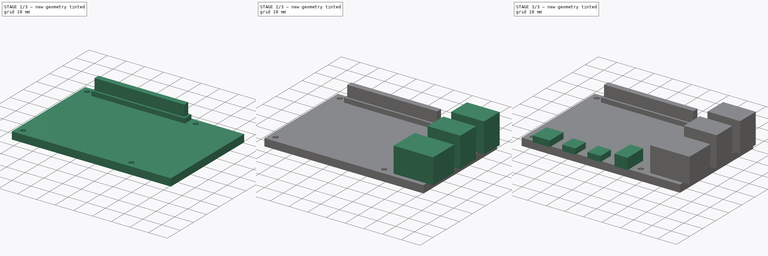
[diagram: build sequence overview — one tinted view per stage of 3, left to right]
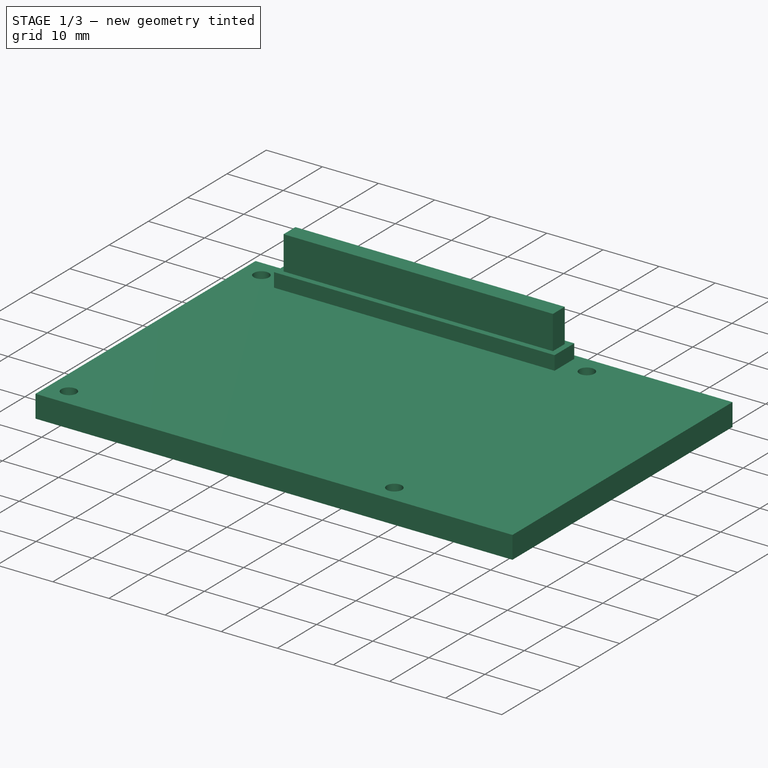
[diagram: stage 1 of 3 — iso view after this stage's code; geometry added in this stage tinted green]
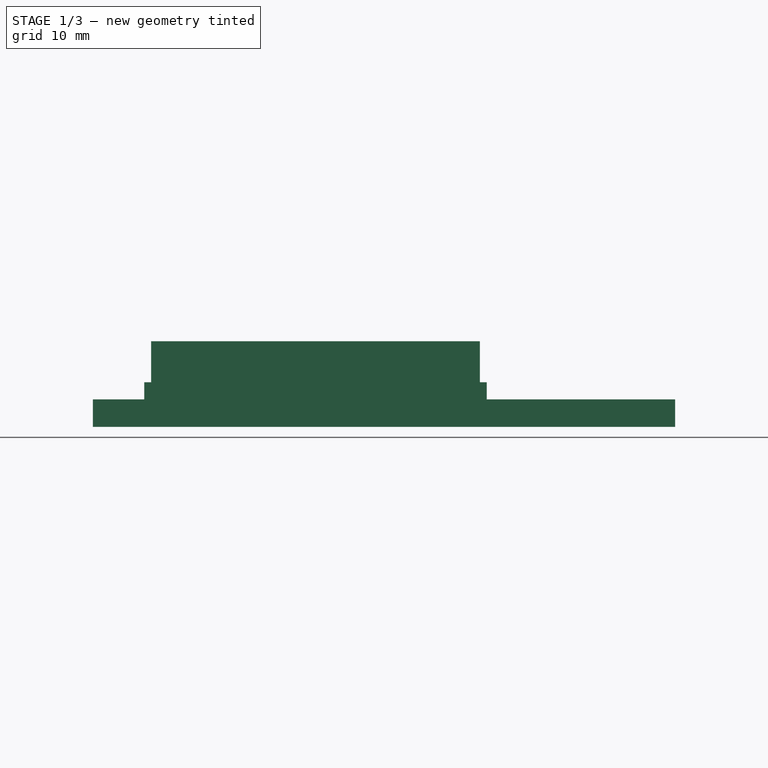
[diagram: stage 1 of 3 — front view after this stage's code; geometry added in this stage tinted green]
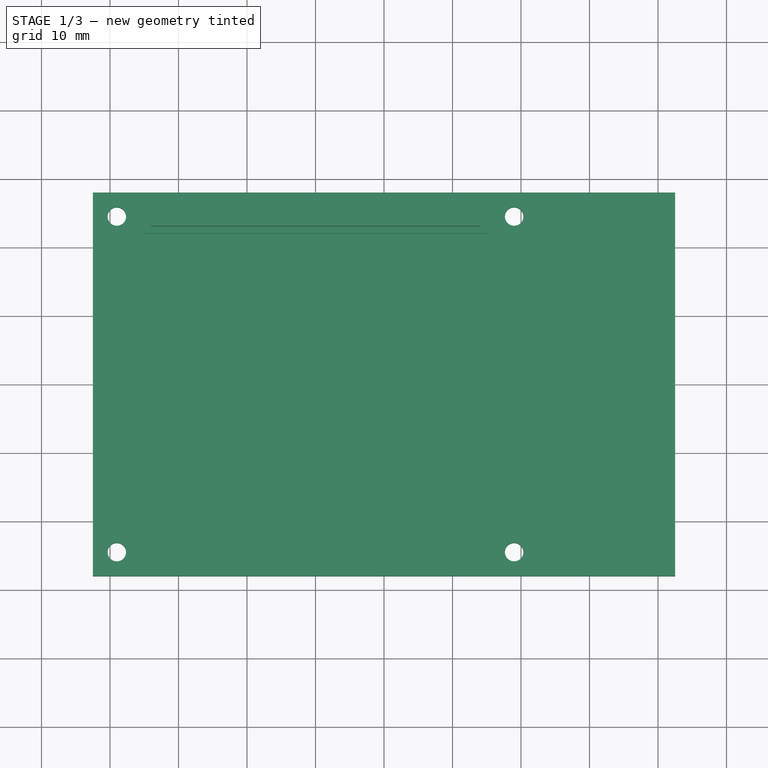
[diagram: stage 1 of 3 — top view after this stage's code; geometry added in this stage tinted green]
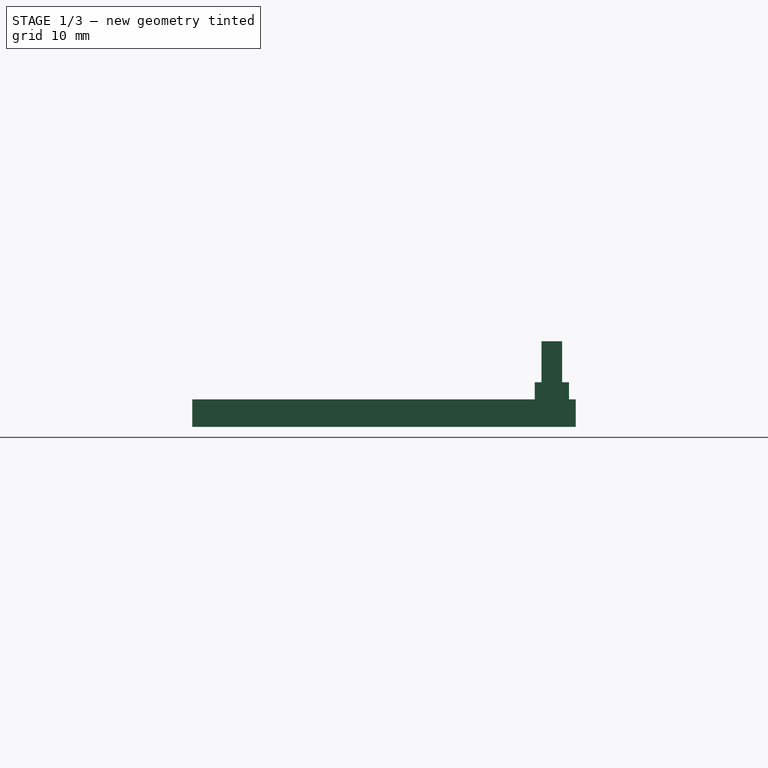
[diagram: stage 1 of 3 — right view after this stage's code; geometry added in this stage tinted green]
FCSTD DOCUMENT  (FreeCAD 0.21R33668 +26 (Git))
Label: Raspberrypi4B
License: All rights reserved
LicenseURL: http://en.wikipedia.org/wiki/All_rights_reserved
objects: Sketcher::SketchObject×8, PartDesign::Pad×7, App::DocumentObjectGroup×3, PartDesign::CoordinateSystem×3, Spreadsheet::Sheet×1, PartDesign::Pocket×1, PartDesign::Body×1, App::FeaturePython×1, App::Part×1
note: 28 computed .brp shape members not serialized (recipe doc carries the construction recipe); baked Part::Feature solids carry a one-line shape summary decoded from their .brp

FEATURE [Sketcher::SketchObject] Sketch
  FullyConstrained = true
  MapMode = 5
  Support = -> [XY_Plane]
  expr: Constraints[12] = <<Spreadsheet>>.holes_distV
  expr: Constraints[13] = <<Spreadsheet>>.holes_distV
  expr: Constraints[14] = <<Spreadsheet>>.holes_offset_x
  expr: Constraints[15] = Spreadsheet.holes_radius
  expr: Constraints[16] = Spreadsheet.holes_radius
  expr: Constraints[17] = Spreadsheet.holes_radius
  expr: Constraints[18] = Spreadsheet.holes_radius
  expr: Constraints[7] = Spreadsheet.width
  expr: Constraints[8] = Spreadsheet.height
  expr: Constraints[9] = <<Spreadsheet>>.holes_distH
  sketch-geometry (8):
    g0: LineSegment StartX=-42.5 StartY=28 StartZ=0 EndX=42.5 EndY=28 EndZ=0
    g1: LineSegment StartX=42.5 StartY=28 StartZ=0 EndX=42.5 EndY=-28 EndZ=0
    g2: LineSegment StartX=42.5 StartY=-28 StartZ=0 EndX=-42.5 EndY=-28 EndZ=0
    g3: LineSegment StartX=-42.5 StartY=-28 StartZ=0 EndX=-42.5 EndY=28 EndZ=0
    g4: Circle CenterX=-39 CenterY=24.5 CenterZ=0 NormalX=0 NormalY=0 NormalZ=1 AngleXU=0 Radius=1.35
    g5: Circle CenterX=19 CenterY=24.5 CenterZ=0 NormalX=0 NormalY=0 NormalZ=1 AngleXU=0 Radius=1.35
    g6: Circle CenterX=-39 CenterY=-24.5 CenterZ=0 NormalX=0 NormalY=0 NormalZ=1 AngleXU=0 Radius=1.35
    g7: Circle CenterX=19 CenterY=-24.5 CenterZ=0 NormalX=0 NormalY=0 NormalZ=1 AngleXU=0 Radius=1.35
  constraints (19):
    c: Coincident(g0,g1)
    c: Coincident(g1,g2)
    c: Coincident(g2,g3)
    c: Coincident(g3,g0)
    c: Symmetric(g0,g0,g-2)
    c: Symmetric(g2,g0,g-1)
    c: Symmetric(g0,g1,g-1)
    c: DistanceX(g0,g0) = 85
    c: DistanceY(g1,g1) = 56
    c: DistanceX(g4,g5) = 58
    c: Symmetric(g4,g6,g-1)
    c: Symmetric(g5,g7,g-1)
    c: DistanceY(g6,g4) = 49
    c: DistanceY(g7,g5) = 49
    c: DistanceX(g0,g4) = 3.5
    c: Radius(g4) = 1.35
    c: Radius(g5) = 1.35
    c: Radius(g7) = 1.35
    c: Radius(g6) = 1.35
FEATURE [PartDesign::Pad] Pad
  Direction = (0,0,1)
  Length = 4
  Length2 = 10
  Profile = -> Sketch
  ReferenceAxis = -> Sketch [N_Axis]
  Reversed = true
  Type = 0
  expr: Length = Spreadsheet.thickness
FEATURE [Spreadsheet::Sheet] Spreadsheet
  cells = B2='width; C2(width)==85 mm; E2='holes_radius; F2(holes_radius)==1.35 mm; H2='usb_lower_offset; I2(usb_lower_offset)==47 mm; B3='height; C3(height)==56 mm; E3='holes_distH; F3(holes_distH)==58 mm; H3='usb_middle_offset; I3(usb_middle_offset)==29 mm; B4='thickness; C4(thickness)==4 mm; E4='holes_distV; F4(holes_distV)==49 mm; H4='ethernet_offset; I4(ethernet_offset)==10.25 mm; E5='holes_offset_x; F5(holes_offset_x)==3.5 mm; H5='usbc_offset; I5(usbc_offset)==7.7 mm + 3.5 mm; B6='connector_width; C6(connector_width)==50 mm; H6='hdmi_left_offset; I6(hdmi_left_offset)==14.8 mm; B7='connector_height; C7(connector_height)==5 mm; H7='hdmi_right_offset; I7(hdmi_right_offset)=13.5; B8='connector_depth; C8(connector_depth)==8.5 mm; H8='round_power_offset; I8(round_power_offset)==14.5 mm; B9='connector_base_depth; C9(connector_base_depth)==2.5 mm; E11='usb_width; F11(usb_width)==12 mm; H11='ethernet_width; I11(ethernet_width)==16 mm; E12='usb_depth; F12(usb_depth)==17.5 mm; H12='ethernet_depth; I12(ethernet_depth)==21.1 mm; E13='usb_height; F13(usb_height)==16 mm; H13='ethernet_height; I13(ethernet_height)==13.5 mm; E15='usbc_width; F15(usbc_width)==9.2 mm; H15='hdmi_width; I15(hdmi_width)==7 mm; E16='usbc_depth; F16(usbc_depth)==10.5 mm; H16='hdmi_depth; I16(hdmi_depth)==8 mm; E17='usbc_height; F17(usbc_height)==3.2 mm; H17='hdmi_height; I17(hdmi_height)==3 mm; E19='rpower_width; F19(rpower_width)==7 mm; H19='right_protrude; I19(right_protrude)==3.5 mm; E20='rpower_depth; F20(rpower_depth)==12 mm; H20='lower_protrude; I20(lower_protrude)==1 mm; E21='rpower_height; F21(rpower_height)==6 mm
FEATURE [Sketcher::SketchObject] Sketch001
  ExternalGeometry = -> [Pad]
  FullyConstrained = true
  MapMode = 5
  Support = -> [Pad]
  expr: Constraints[10] = <<Spreadsheet>>.connector_height
  expr: Constraints[9] = <<Spreadsheet>>.connector_width
  sketch-geometry (5):
    g0: LineSegment StartX=-35 StartY=27 StartZ=0 EndX=15 EndY=27 EndZ=0
    g1: LineSegment StartX=15 StartY=27 StartZ=0 EndX=15 EndY=22 EndZ=0
    g2: LineSegment StartX=15 StartY=22 StartZ=0 EndX=-35 EndY=22 EndZ=0
    g3: LineSegment StartX=-35 StartY=22 StartZ=0 EndX=-35 EndY=27 EndZ=0
    g4: GeomPoint X=-10 Y=24.5 Z=0
  constraints (11):
    c: Coincident(g0,g1)
    c: Coincident(g1,g2)
    c: Coincident(g2,g3)
    c: Coincident(g3,g0)
    c: Horizontal(g0)
    c: Vertical(g1)
    c: Symmetric(g-7,g-8,g4)
    c: Symmetric(g0,g1,g4)
    c: Symmetric(g2,g0,g4)
    c: DistanceX(g0,g0) = 50
    c: DistanceY(g3,g3) = 5
FEATURE [PartDesign::Pad] Pad001
  BaseFeature = -> Pad
  Direction = (0,0,1)
  Length = 8.5
  Length2 = 10
  Profile = -> Sketch001
  ReferenceAxis = -> Sketch001 [N_Axis]
  Type = 0
  expr: Length = <<Spreadsheet>>.connector_depth
FEATURE [Sketcher::SketchObject] Sketch002
  ExternalGeometry = -> [Pad001]
  FullyConstrained = true
  MapMode = 5
  Placement = pos=(0,0,8.5) rot=(0,0,1;0rad)
  Support = -> [Pad001]
  sketch-geometry (8):
    g0: LineSegment StartX=-35 StartY=27 StartZ=0 EndX=15 EndY=27 EndZ=0
    g1: LineSegment StartX=15 StartY=27 StartZ=0 EndX=15 EndY=22 EndZ=0
    g2: LineSegment StartX=15 StartY=22 StartZ=0 EndX=-35 EndY=22 EndZ=0
    g3: LineSegment StartX=-35 StartY=22 StartZ=0 EndX=-35 EndY=27 EndZ=0
    g4: LineSegment StartX=-34 StartY=26 StartZ=0 EndX=14 EndY=26 EndZ=0
    g5: LineSegment StartX=14 StartY=26 StartZ=0 EndX=14 EndY=23 EndZ=0
    g6: LineSegment StartX=14 StartY=23 StartZ=0 EndX=-34 EndY=23 EndZ=0
    g7: LineSegment StartX=-34 StartY=23 StartZ=0 EndX=-34 EndY=26 EndZ=0
  constraints (22):
    c: Coincident(g0,g1)
    c: Coincident(g1,g2)
    c: Coincident(g2,g3)
    c: Coincident(g3,g0)
    c: Horizontal(g0)
    c: Horizontal(g2)
    c: Vertical(g1)
    c: Vertical(g3)
    c: Coincident(g0,g-4)
    c: Coincident(g1,g-6)
    c: Coincident(g4,g5)
    c: Coincident(g5,g6)
    c: Coincident(g6,g7)
    c: Coincident(g7,g4)
    c: Horizontal(g4)
    c: Horizontal(g6)
    c: Vertical(g5)
    c: Vertical(g7)
    c: DistanceX(g0,g4) = 1
    c: DistanceY(g4,g0) = 1
    c: DistanceY(g2,g6) = 1
    c: DistanceX(g4,g0) = 1
FEATURE [PartDesign::Pocket] Pocket  label="Connector"
  BaseFeature = -> Pad001
  Direction = (0,0,-1)
  Length = 6
  Length2 = 5
  Profile = -> Sketch002
  ReferenceAxis = -> Sketch002 [N_Axis]
  Type = 0
  expr: Length = <<Spreadsheet>>.connector_depth - <<Spreadsheet>>.connector_base_depth
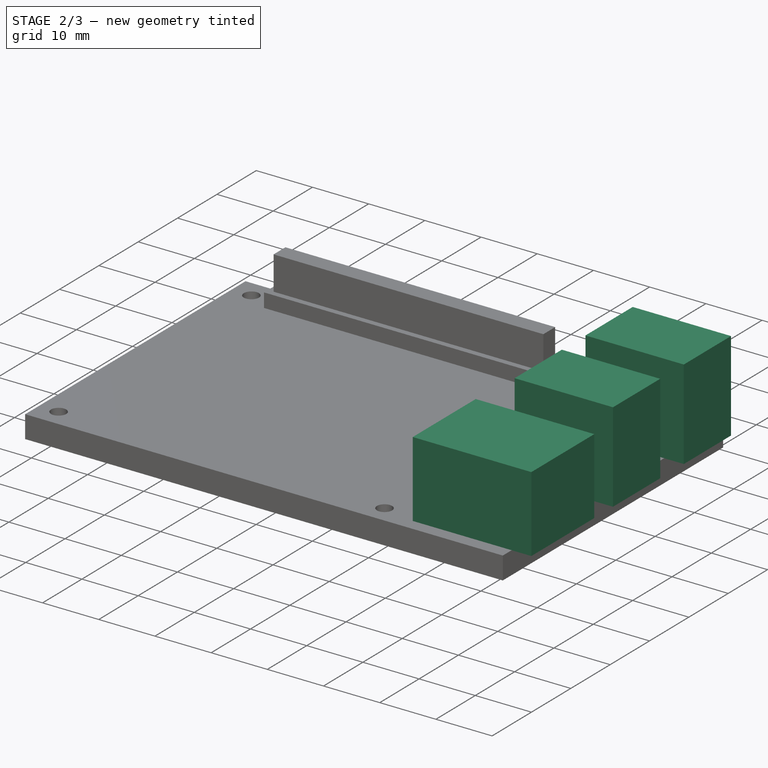
[diagram: stage 2 of 3 — iso view after this stage's code; geometry added in this stage tinted green]
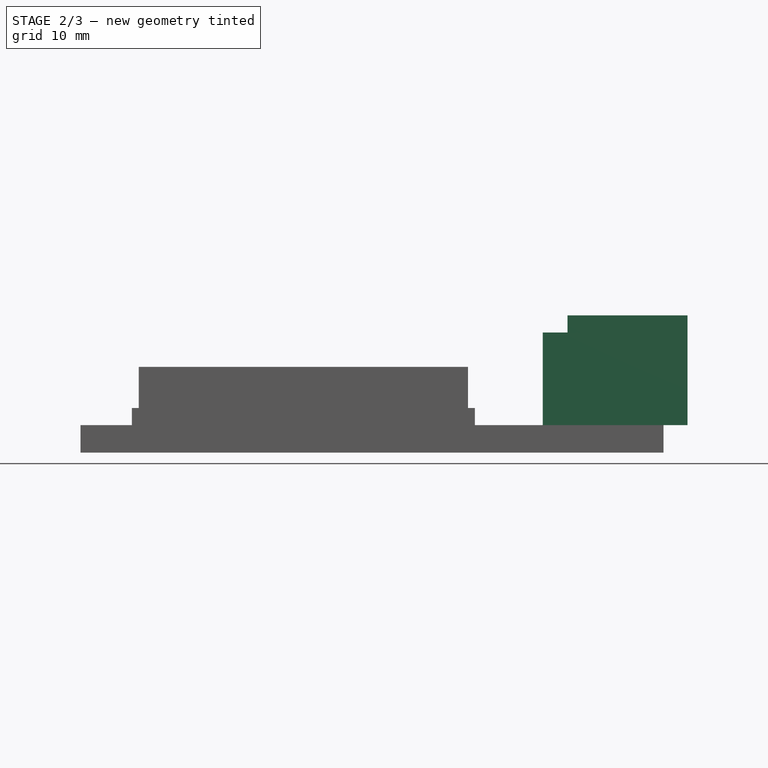
[diagram: stage 2 of 3 — front view after this stage's code; geometry added in this stage tinted green]
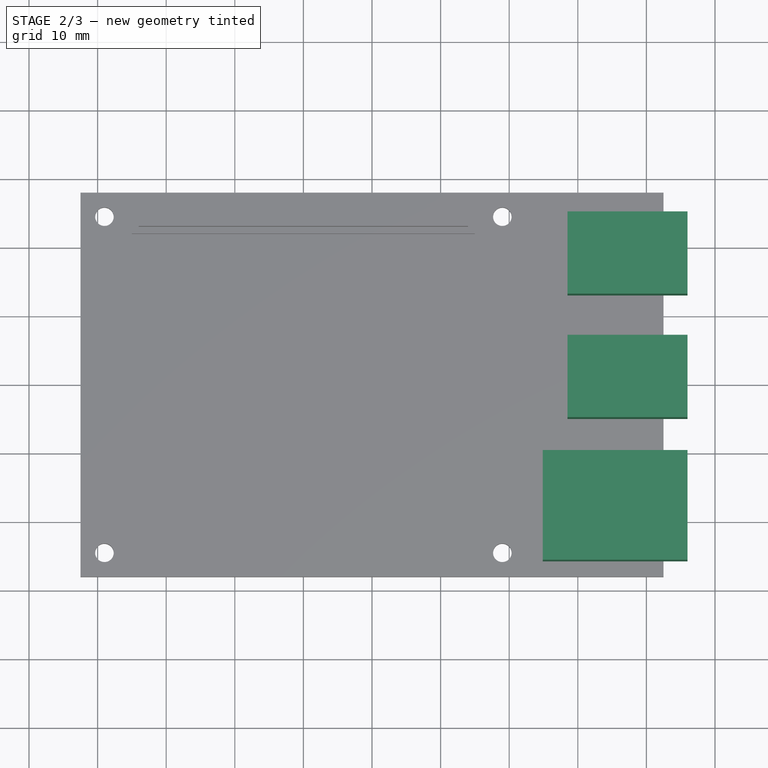
[diagram: stage 2 of 3 — top view after this stage's code; geometry added in this stage tinted green]
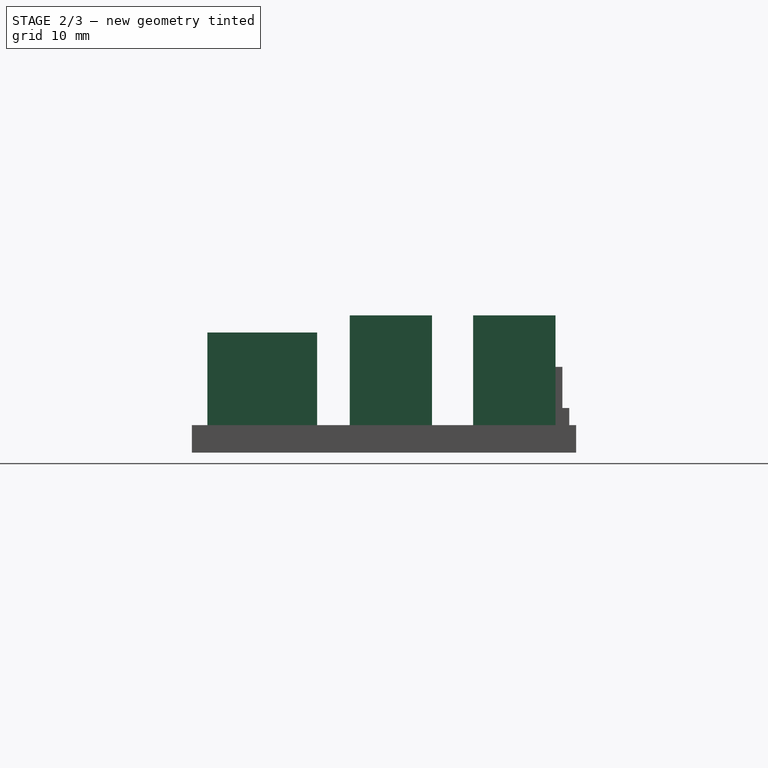
[diagram: stage 2 of 3 — right view after this stage's code; geometry added in this stage tinted green]
FEATURE [Sketcher::SketchObject] Sketch003
  ExternalGeometry = -> [Pocket]
  FullyConstrained = true
  MapMode = 5
  Support = -> [Pocket]
  expr: Constraints[18] = <<Spreadsheet>>.usb_lower_offset
  expr: Constraints[19] = <<Spreadsheet>>.usb_middle_offset
  expr: Constraints[20] = <<Spreadsheet>>.usb_width
  expr: Constraints[21] = <<Spreadsheet>>.usb_width
  expr: Constraints[22] = <<Spreadsheet>>.usb_width / 2
  expr: Constraints[23] = <<Spreadsheet>>.usb_width / 2
  expr: Constraints[24] = <<Spreadsheet>>.usb_depth
  expr: Constraints[25] = <<Spreadsheet>>.usb_depth
  expr: Constraints[26] = <<Spreadsheet>>.right_protrude
  expr: Constraints[27] = <<Spreadsheet>>.right_protrude
  sketch-geometry (10):
    g0: LineSegment StartX=28.5 StartY=25 StartZ=0 EndX=46 EndY=25 EndZ=0
    g1: LineSegment StartX=46 StartY=25 StartZ=0 EndX=46 EndY=13 EndZ=0
    g2: LineSegment StartX=46 StartY=13 StartZ=0 EndX=28.5 EndY=13 EndZ=0
    g3: LineSegment StartX=28.5 StartY=13 StartZ=0 EndX=28.5 EndY=25 EndZ=0
    g4: LineSegment StartX=28.5 StartY=7 StartZ=0 EndX=46 EndY=7 EndZ=0
    g5: LineSegment StartX=46 StartY=7 StartZ=0 EndX=46 EndY=-5 EndZ=0
    g6: LineSegment StartX=46 StartY=-5 StartZ=0 EndX=28.5 EndY=-5 EndZ=0
    g7: LineSegment StartX=28.5 StartY=-5 StartZ=0 EndX=28.5 EndY=7 EndZ=0
    g8: GeomPoint X=42.5 Y=19 Z=0
    g9: GeomPoint X=42.5 Y=1 Z=0
  constraints (28):
    c: Coincident(g0,g1)
    c: Coincident(g1,g2)
    c: Coincident(g2,g3)
    c: Coincident(g3,g0)
    c: Horizontal(g0)
    c: Horizontal(g2)
    c: Vertical(g1)
    c: Vertical(g3)
    c: Coincident(g4,g5)
    c: Coincident(g5,g6)
    c: Coincident(g6,g7)
    c: Coincident(g7,g4)
    c: Horizontal(g4)
    c: Horizontal(g6)
    c: Vertical(g5)
    c: Vertical(g7)
    c: PointOnObject(g8,g-4)
    c: PointOnObject(g9,g-4)
    c: DistanceY(g-4,g8) = 47
    c: DistanceY(g-4,g9) = 29
    c: DistanceY(g3,g3) = 12
    c: DistanceY(g7,g7) = 12
    c: DistanceY(g8,g0) = 6
    c: DistanceY(g9,g4) = 6
    c: DistanceX(g4,g4) = 17.5
    c: DistanceX(g0,g0) = 17.5
    c: DistanceX(g-4,g1) = 3.5
    c: DistanceX(g-4,g5) = 3.5
FEATURE [PartDesign::Pad] Pad002  label="USB_A"
  BaseFeature = -> Pocket
  Direction = (0,0,1)
  Length = 16
  Length2 = 10
  Profile = -> Sketch003
  ReferenceAxis = -> Sketch003 [N_Axis]
  Type = 0
  expr: Length = <<Spreadsheet>>.usb_height
FEATURE [Sketcher::SketchObject] Sketch004
  ExternalGeometry = -> [Pad002]
  FullyConstrained = true
  MapMode = 5
  Support = -> [Pad002]
  expr: Constraints[10] = <<Spreadsheet>>.ethernet_width
  expr: Constraints[11] = <<Spreadsheet>>.ethernet_depth
  expr: Constraints[12] = <<Spreadsheet>>.ethernet_width / 2
  expr: Constraints[13] = <<Spreadsheet>>.right_protrude
  expr: Constraints[9] = <<Spreadsheet>>.ethernet_offset
  sketch-geometry (5):
    g0: LineSegment StartX=24.9 StartY=-9.75 StartZ=0 EndX=46 EndY=-9.75 EndZ=0
    g1: LineSegment StartX=46 StartY=-9.75 StartZ=0 EndX=46 EndY=-25.75 EndZ=0
    g2: LineSegment StartX=46 StartY=-25.75 StartZ=0 EndX=24.9 EndY=-25.75 EndZ=0
    g3: LineSegment StartX=24.9 StartY=-25.75 StartZ=0 EndX=24.9 EndY=-9.75 EndZ=0
    g4: GeomPoint X=42.5 Y=-17.75 Z=0
  constraints (14):
    c: Coincident(g0,g1)
    c: Coincident(g1,g2)
    c: Coincident(g2,g3)
    c: Coincident(g3,g0)
    c: Horizontal(g0)
    c: Horizontal(g2)
    c: Vertical(g1)
    c: Vertical(g3)
    c: PointOnObject(g4,g-4)
    c: DistanceY(g-3,g4) = 10.25
    c: DistanceY(g3,g3) = 16
    c: DistanceX(g0,g0) = 21.1
    c: DistanceY(g4,g0) = 8
    c: DistanceX(g4,g1) = 3.5
FEATURE [PartDesign::Pad] Pad003  label="Ethernet"
  BaseFeature = -> Pad002
  Direction = (0,0,1)
  Length = 13.5
  Length2 = 10
  Profile = -> Sketch004
  ReferenceAxis = -> Sketch004 [N_Axis]
  Type = 0
  expr: Length = <<Spreadsheet>>.ethernet_height
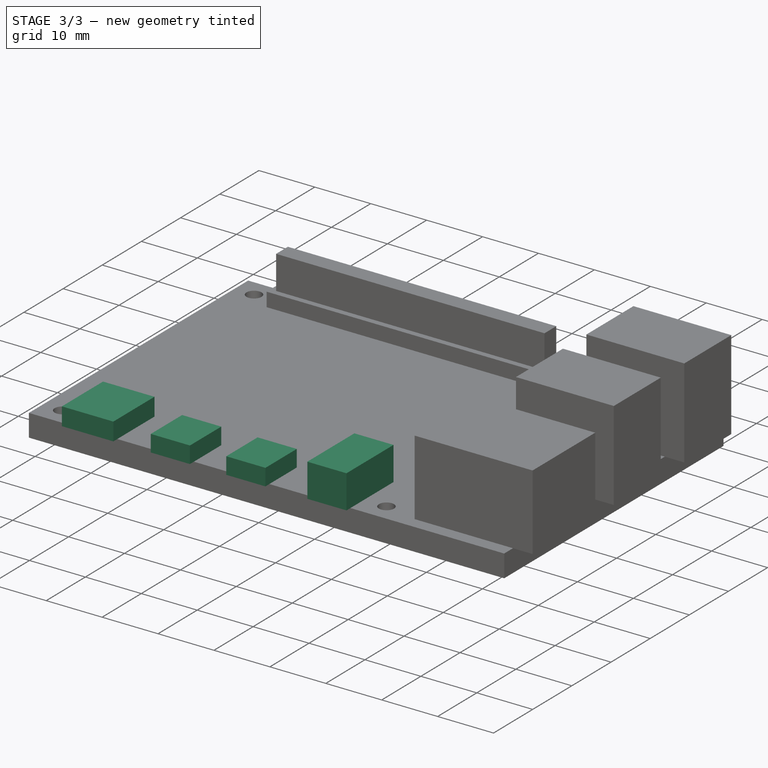
[diagram: stage 3 of 3 — iso view after this stage's code; geometry added in this stage tinted green]
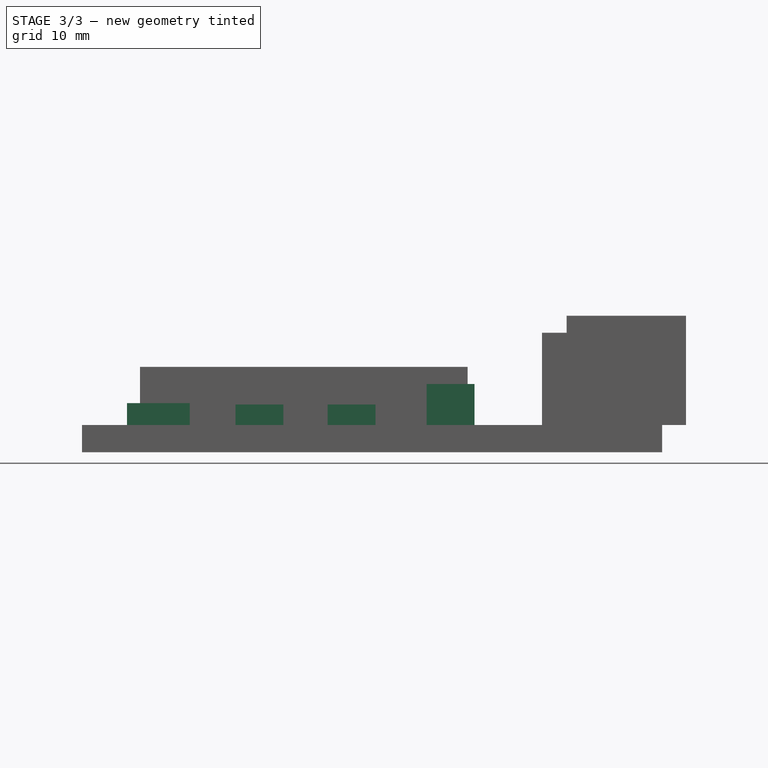
[diagram: stage 3 of 3 — front view after this stage's code; geometry added in this stage tinted green]
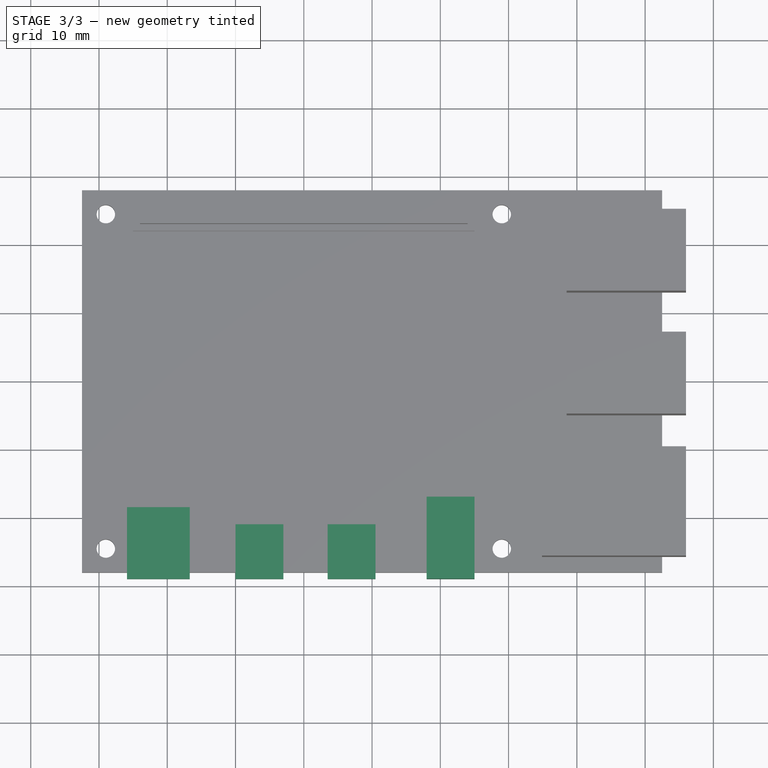
[diagram: stage 3 of 3 — top view after this stage's code; geometry added in this stage tinted green]
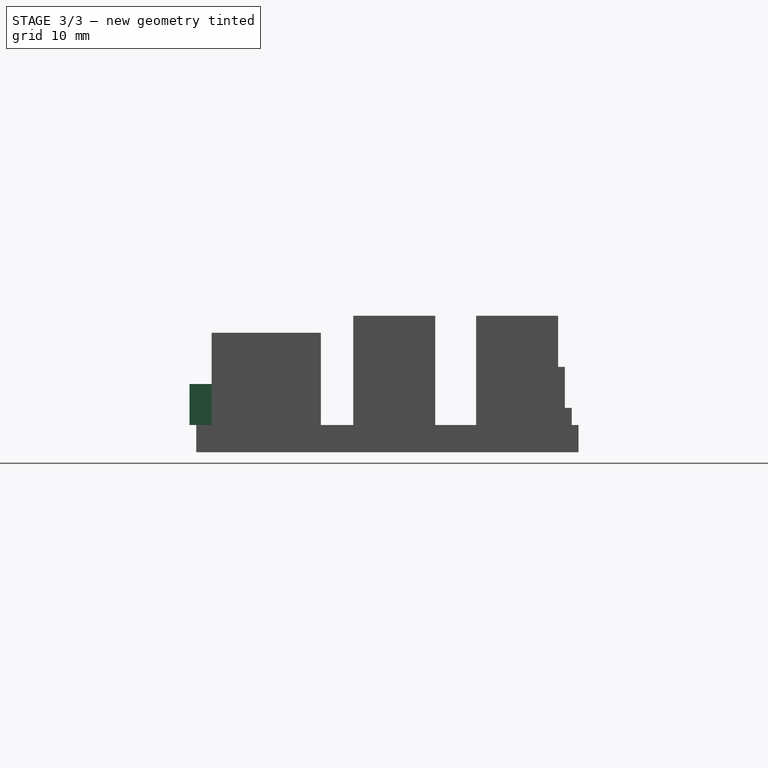
[diagram: stage 3 of 3 — right view after this stage's code; geometry added in this stage tinted green]
FEATURE [Sketcher::SketchObject] Sketch005
  ExternalGeometry = -> [Pad003]
  FullyConstrained = true
  MapMode = 5
  Support = -> [Pad003]
  expr: Constraints[10] = <<Spreadsheet>>.usbc_width
  expr: Constraints[11] = <<Spreadsheet>>.usbc_depth
  expr: Constraints[12] = <<Spreadsheet>>.usbc_width / 2
  expr: Constraints[13] = <<Spreadsheet>>.lower_protrude
  expr: Constraints[9] = <<Spreadsheet>>.usbc_offset
  sketch-geometry (5):
    g0: LineSegment StartX=-35.9 StartY=-18.5 StartZ=0 EndX=-26.7 EndY=-18.5 EndZ=0
    g1: LineSegment StartX=-26.7 StartY=-18.5 StartZ=0 EndX=-26.7 EndY=-29 EndZ=0
    g2: LineSegment StartX=-26.7 StartY=-29 StartZ=0 EndX=-35.9 EndY=-29 EndZ=0
    g3: LineSegment StartX=-35.9 StartY=-29 StartZ=0 EndX=-35.9 EndY=-18.5 EndZ=0
    g4: GeomPoint X=-31.3 Y=-28 Z=0
  constraints (14):
    c: Coincident(g0,g1)
    c: Coincident(g1,g2)
    c: Coincident(g2,g3)
    c: Coincident(g3,g0)
    c: Horizontal(g0)
    c: Horizontal(g2)
    c: Vertical(g1)
    c: Vertical(g3)
    c: PointOnObject(g4,g-4)
    c: DistanceX(g-4,g4) = 11.2
    c: DistanceX(g0,g0) = 9.2
    c: DistanceY(g1,g1) = 10.5
    c: DistanceX(g4,g0) = 4.6
    c: DistanceY(g2,g4) = 1
FEATURE [PartDesign::Pad] Pad004  label="USB_C"
  BaseFeature = -> Pad003
  Direction = (0,0,1)
  Length = 3.2
  Length2 = 10
  Profile = -> Sketch005
  ReferenceAxis = -> Sketch005 [N_Axis]
  Type = 0
  expr: Length = <<Spreadsheet>>.usbc_height
FEATURE [Sketcher::SketchObject] Sketch006
  ExternalGeometry = -> [Pad004]
  FullyConstrained = true
  MapMode = 5
  Support = -> [Pad004]
  expr: Constraints[19] = <<Spreadsheet>>.hdmi_left_offset
  expr: Constraints[20] = <<Spreadsheet>>.hdmi_right_offset
  expr: Constraints[21] = <<Spreadsheet>>.hdmi_width
  expr: Constraints[22] = <<Spreadsheet>>.hdmi_width
  expr: Constraints[23] = <<Spreadsheet>>.hdmi_depth
  expr: Constraints[24] = <<Spreadsheet>>.hdmi_depth
  expr: Constraints[25] = <<Spreadsheet>>.hdmi_width / 2
  expr: Constraints[26] = <<Spreadsheet>>.hdmi_width / 2
  expr: Constraints[27] = <<Spreadsheet>>.lower_protrude
  expr: Constraints[28] = <<Spreadsheet>>.lower_protrude
  sketch-geometry (11):
    g0: LineSegment StartX=-20 StartY=-21 StartZ=0 EndX=-13 EndY=-21 EndZ=0
    g1: LineSegment StartX=-13 StartY=-21 StartZ=0 EndX=-13 EndY=-29 EndZ=0
    g2: LineSegment StartX=-13 StartY=-29 StartZ=0 EndX=-20 EndY=-29 EndZ=0
    g3: LineSegment StartX=-20 StartY=-29 StartZ=0 EndX=-20 EndY=-21 EndZ=0
    g4: LineSegment StartX=-6.5 StartY=-21 StartZ=0 EndX=0.5 EndY=-21 EndZ=0
    g5: LineSegment StartX=0.5 StartY=-21 StartZ=0 EndX=0.5 EndY=-29 EndZ=0
    g6: LineSegment StartX=0.5 StartY=-29 StartZ=0 EndX=-6.5 EndY=-29 EndZ=0
    g7: LineSegment StartX=-6.5 StartY=-29 StartZ=0 EndX=-6.5 EndY=-21 EndZ=0
    g8: GeomPoint X=-31.3 Y=-29 Z=0
    g9: GeomPoint X=-16.5 Y=-28 Z=0
    g10: GeomPoint X=-3 Y=-28 Z=0
  constraints (29):
    c: Coincident(g0,g1)
    c: Coincident(g1,g2)
    c: Coincident(g2,g3)
    c: Coincident(g3,g0)
    c: Horizontal(g0)
    c: Horizontal(g2)
    c: Vertical(g1)
    c: Vertical(g3)
    c: Coincident(g4,g5)
    c: Coincident(g5,g6)
    c: Coincident(g6,g7)
    c: Coincident(g7,g4)
    c: Horizontal(g4)
    c: Horizontal(g6)
    c: Vertical(g5)
    c: Vertical(g7)
    c: PointOnObject(g9,g-3)
    c: PointOnObject(g10,g-3)
    c: Symmetric(g-6,g-5,g8)
    c: DistanceX(g8,g9) = 14.8
    c: DistanceX(g9,g10) = 13.5
    c: DistanceX(g0,g0) = 7
    c: DistanceX(g4,g4) = 7
    c: DistanceY(g3,g3) = 8
    c: DistanceY(g7,g7) = 8
    c: DistanceX(g2,g9) = 3.5
    c: DistanceX(g6,g10) = 3.5
    c: DistanceY(g1,g9) = 1
    c: DistanceY(g5,g10) = 1
FEATURE [PartDesign::Pad] Pad005  label="HDMI_Mini"
  BaseFeature = -> Pad004
  Direction = (0,0,1)
  Length = 3
  Length2 = 10
  Profile = -> Sketch006
  ReferenceAxis = -> Sketch006 [N_Axis]
  Type = 0
  expr: Length = <<Spreadsheet>>.hdmi_height
FEATURE [Sketcher::SketchObject] Sketch007
  ExternalGeometry = -> [Pad005]
  FullyConstrained = true
  MapMode = 5
  Support = -> [Pad005]
  expr: Constraints[10] = <<Spreadsheet>>.round_power_offset
  expr: Constraints[11] = <<Spreadsheet>>.rpower_width
  expr: Constraints[12] = <<Spreadsheet>>.rpower_depth
  expr: Constraints[13] = <<Spreadsheet>>.rpower_width / 2
  expr: Constraints[14] = <<Spreadsheet>>.lower_protrude
  sketch-geometry (6):
    g0: LineSegment StartX=8 StartY=-17 StartZ=0 EndX=15 EndY=-17 EndZ=0
    g1: LineSegment StartX=15 StartY=-17 StartZ=0 EndX=15 EndY=-29 EndZ=0
    g2: LineSegment StartX=15 StartY=-29 StartZ=0 EndX=8 EndY=-29 EndZ=0
    g3: LineSegment StartX=8 StartY=-29 StartZ=0 EndX=8 EndY=-17 EndZ=0
    g4: GeomPoint X=-3 Y=-29 Z=0
    g5: GeomPoint X=11.5 Y=-28 Z=0
  constraints (15):
    c: Coincident(g0,g1)
    c: Coincident(g1,g2)
    c: Coincident(g2,g3)
    c: Coincident(g3,g0)
    c: Horizontal(g0)
    c: Horizontal(g2)
    c: Vertical(g1)
    c: Vertical(g3)
    c: PointOnObject(g5,g-3)
    c: Symmetric(g-4,g-5,g4)
    c: DistanceX(g4,g5) = 14.5
    c: DistanceX(g0,g0) = 7
    c: DistanceY(g3,g3) = 12
    c: DistanceX(g2,g5) = 3.5
    c: DistanceY(g2,g5) = 1
FEATURE [PartDesign::Pad] Pad006  label="Round_Power"
  BaseFeature = -> Pad005
  Direction = (0,0,1)
  Length = 6
  Length2 = 10
  Profile = -> Sketch007
  ReferenceAxis = -> Sketch007 [N_Axis]
  Type = 0
  expr: Length = <<Spreadsheet>>.rpower_height
FEATURE [PartDesign::Body] Body
  Group = -> [Sketch,Pad,Sketch001,Pad001,Sketch002,Pocket,Sketch003,Pad002,Sketch004,Pad003,Sketch005,Pad004,Sketch006,Pad005,Sketch007,Pad006]
  Origin = -> Origin
  Tip = -> Pad006
FEATURE [App::DocumentObjectGroup] Parts
FEATURE [PartDesign::CoordinateSystem] LCS_Origin
  AttacherType = Attacher::AttachEngine3D
  MapMode = 2
  Support = -> [X_Axis001]
FEATURE [App::DocumentObjectGroup] Constraints
FEATURE [App::FeaturePython] Variables  # WARN: FeaturePython — macro-defined, semantics opaque (R4)
  Type = App::PropertyContainer
FEATURE [App::DocumentObjectGroup] Configurations
FEATURE [PartDesign::CoordinateSystem] LCS_Connector
  AttacherType = Attacher::AttachEngine3D
  MapMode = 1
  Placement = pos=(-35,27,2.5) rot=(0,0,1;0rad)
  Support = -> [Pad006]
FEATURE [PartDesign::CoordinateSystem] LCS_Screw
  AttacherType = Attacher::AttachEngine3D
  MapMode = 11
  Placement = pos=(-39,24.5,-4) rot=(0,0,1;1.5708rad)
  Support = -> [Pad006]
FEATURE [App::Part] Model
  AssemblyType = Part::Link
  Group = -> [LCS_Origin,Constraints,Variables,Configurations,Body,LCS_Connector,LCS_Screw]
  Origin = -> Origin001
  Type = Assembly
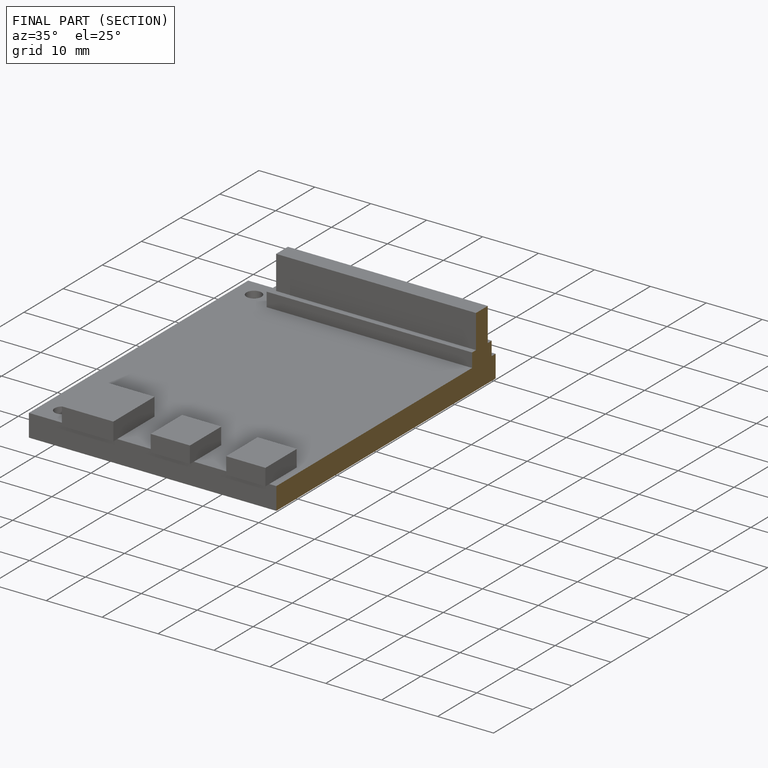
[diagram: finished part — half-section view (interior)]
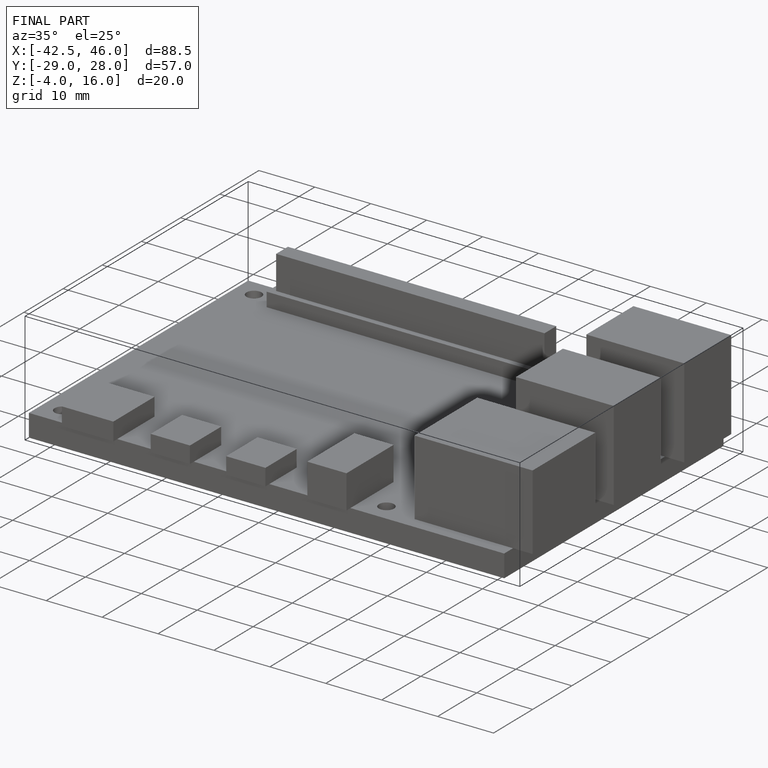
[diagram: finished part — iso view with bounding-box wireframe]
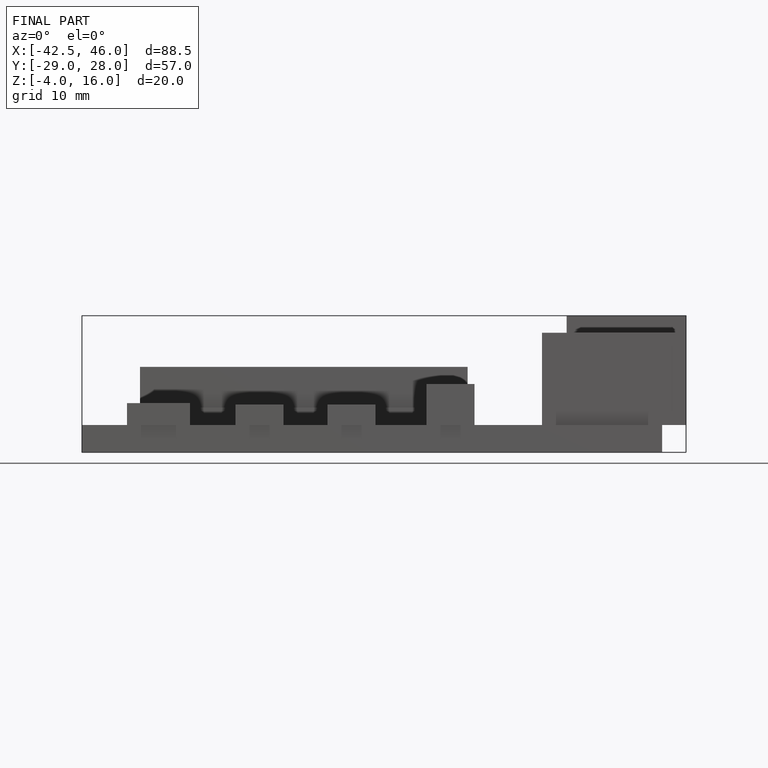
[diagram: finished part — front view with bounding-box wireframe]
